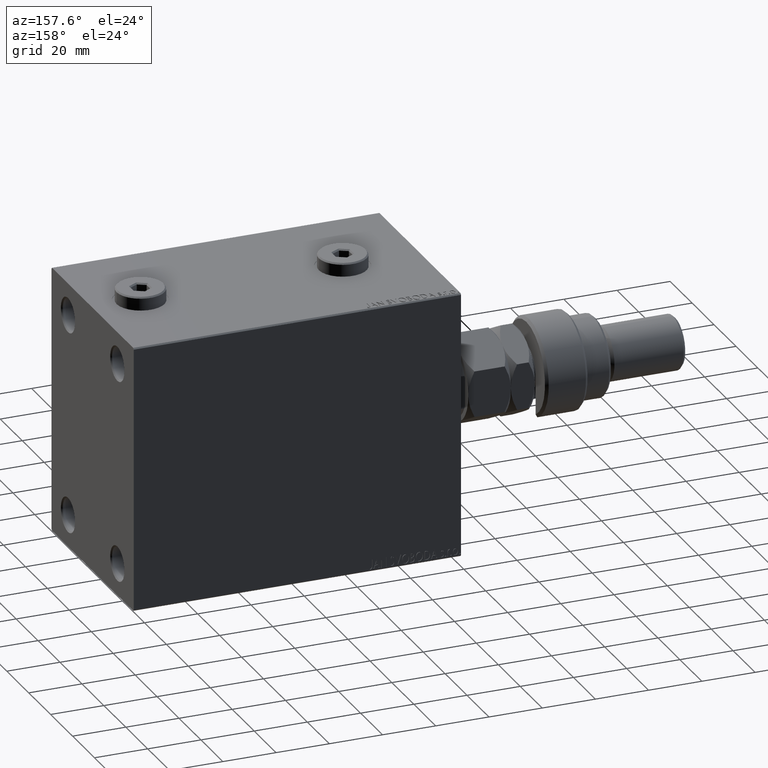
[diagram: clean part render]
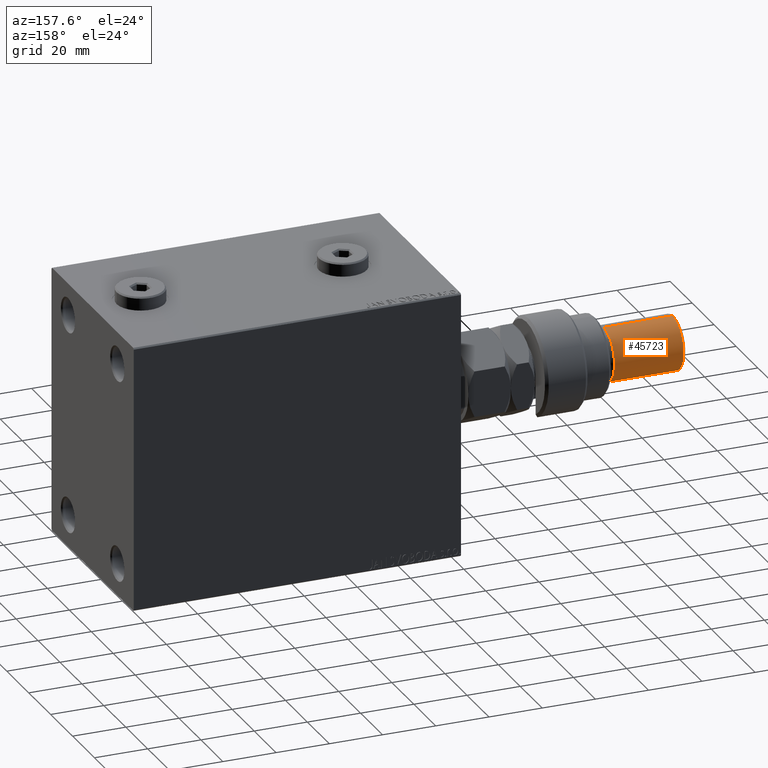
[diagram: same view with one face highlighted and labeled with its STEP entity id]
A machine part, auxiliary view. The second image highlights one B-rep face of the part: STEP entity #45723.
In plain terms, the highlighted cylindrical surface (edge-blend (fillet) strip) has radius 10 mm, axis along (1, -0, -0).
Its self-contained STEP definition (entity closure, byte-faithful):
#1827 = DIRECTION ( 'NONE',  ( -0.000000000000000000, -0.000000000000000000, 1.000000000000000000 ) ) ;
#2133 = AXIS2_PLACEMENT_3D ( 'NONE', #47472, #1827, #39106 ) ;
#2753 = CARTESIAN_POINT ( 'NONE',  ( 0.000000000000000000, 0.000000000000000000, 54.99999999999998579 ) ) ;
#4556 = CIRCLE ( 'NONE', #17078, 10.00000000000000000 ) ;
#4966 = EDGE_LOOP ( 'NONE', ( #17783, #26168, #40237, #16366 ) ) ;
#12044 = CARTESIAN_POINT ( 'NONE',  ( -10.00000000000000000, 0.000000000000000000, 56.00000000000000711 ) ) ;
#12419 = VERTEX_POINT ( 'NONE', #42607 ) ;
#14504 = VERTEX_POINT ( 'NONE', #40198 ) ;
#15474 = LINE ( 'NONE', #26761, #37248 ) ;
#15785 = FACE_OUTER_BOUND ( 'NONE', #4966, .T. ) ;
#16020 = DIRECTION ( 'NONE',  ( -0.000000000000000000, -0.000000000000000000, -1.000000000000000000 ) ) ;
#16366 = ORIENTED_EDGE ( 'NONE', *, *, #45020, .F. ) ;
#17078 = AXIS2_PLACEMENT_3D ( 'NONE', #2753, #40035, #27366 ) ;
#17783 = ORIENTED_EDGE ( 'NONE', *, *, #36208, .T. ) ;
#18921 = LINE ( 'NONE', #12044, #38409 ) ;
#19649 = VERTEX_POINT ( 'NONE', #44402 ) ;
#24450 = EDGE_CURVE ( 'NONE', #12419, #46095, #15474, .T. ) ;
#26168 = ORIENTED_EDGE ( 'NONE', *, *, #24450, .T. ) ;
#26761 = CARTESIAN_POINT ( 'NONE',  ( 10.00000000000000000, 1.224646799147353256E-15, 56.00000000000000711 ) ) ;
#27366 = DIRECTION ( 'NONE',  ( 1.000000000000000000, 0.000000000000000000, 0.000000000000000000 ) ) ;
#28269 = DIRECTION ( 'NONE',  ( -1.000000000000000000, 0.000000000000000000, 0.000000000000000000 ) ) ;
#28935 = CARTESIAN_POINT ( 'NONE',  ( 10.00000000000000000, 1.224646799147353256E-15, 29.00000000000000711 ) ) ;
#30754 = CYLINDRICAL_SURFACE ( 'NONE', #32926, 10.00000000000000000 ) ;
#32926 = AXIS2_PLACEMENT_3D ( 'NONE', #41315, #16020, #28269 ) ;
#33890 = DIRECTION ( 'NONE',  ( -0.000000000000000000, -0.000000000000000000, -1.000000000000000000 ) ) ;
#34029 = EDGE_CURVE ( 'NONE', #46095, #14504, #35826, .T. ) ;
#35826 = CIRCLE ( 'NONE', #2133, 10.00000000000000000 ) ;
#36208 = EDGE_CURVE ( 'NONE', #19649, #12419, #4556, .T. ) ;
#37248 = VECTOR ( 'NONE', #41732, 1000.000000000000000 ) ;
#38409 = VECTOR ( 'NONE', #33890, 1000.000000000000000 ) ;
#39106 = DIRECTION ( 'NONE',  ( 1.000000000000000000, 0.000000000000000000, 0.000000000000000000 ) ) ;
#40035 = DIRECTION ( 'NONE',  ( 0.000000000000000000, 0.000000000000000000, -1.000000000000000000 ) ) ;
#40198 = CARTESIAN_POINT ( 'NONE',  ( -10.00000000000000000, 0.000000000000000000, 29.00000000000000711 ) ) ;
#40237 = ORIENTED_EDGE ( 'NONE', *, *, #34029, .T. ) ;
#41315 = CARTESIAN_POINT ( 'NONE',  ( 0.000000000000000000, 0.000000000000000000, 56.00000000000000711 ) ) ;
#41732 = DIRECTION ( 'NONE',  ( -0.000000000000000000, -0.000000000000000000, -1.000000000000000000 ) ) ;
#42607 = CARTESIAN_POINT ( 'NONE',  ( 10.00000000000000000, 1.224646799147353256E-15, 54.99999999999998579 ) ) ;
#44402 = CARTESIAN_POINT ( 'NONE',  ( -10.00000000000000000, 0.000000000000000000, 54.99999999999998579 ) ) ;
#45020 = EDGE_CURVE ( 'NONE', #19649, #14504, #18921, .T. ) ;
#45723 = ADVANCED_FACE ( 'NONE', ( #15785 ), #30754, .T. ) ;
#46095 = VERTEX_POINT ( 'NONE', #28935 ) ;
#47472 = CARTESIAN_POINT ( 'NONE',  ( 0.000000000000000000, 0.000000000000000000, 29.00000000000000711 ) ) ;